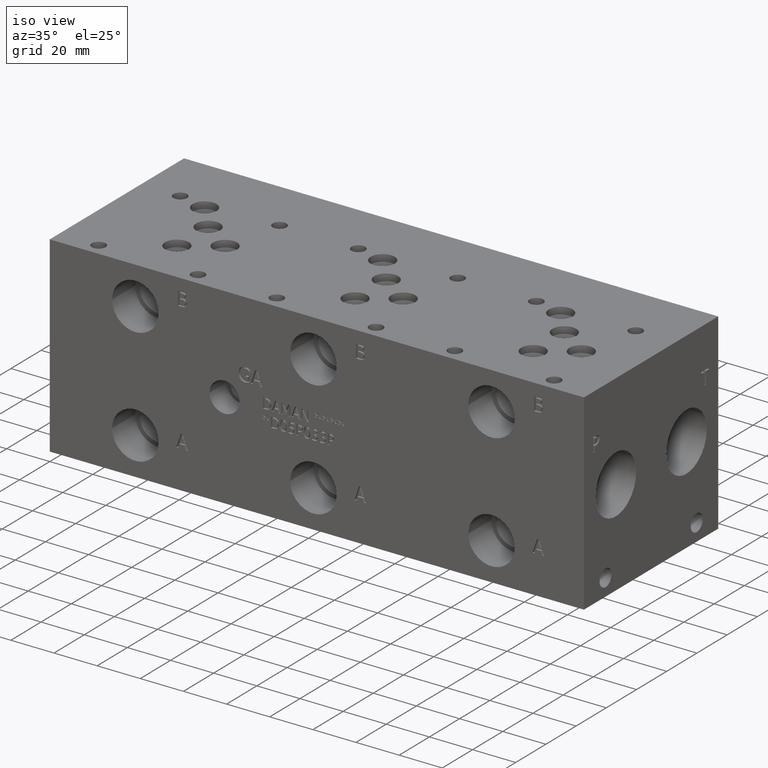
[diagram: clean part render]
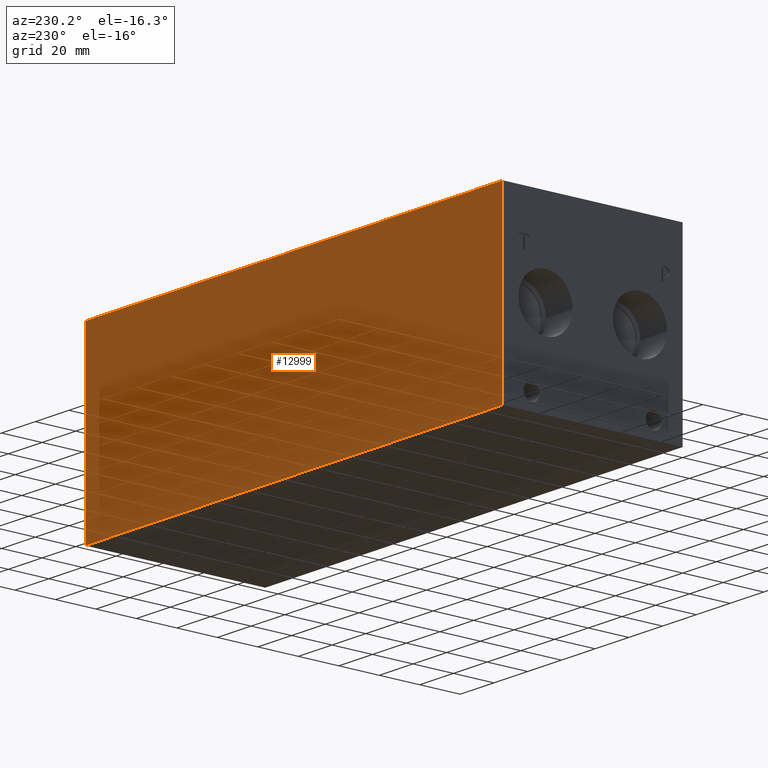
[diagram: tour spotlight — one face highlighted and labeled with its STEP entity id]
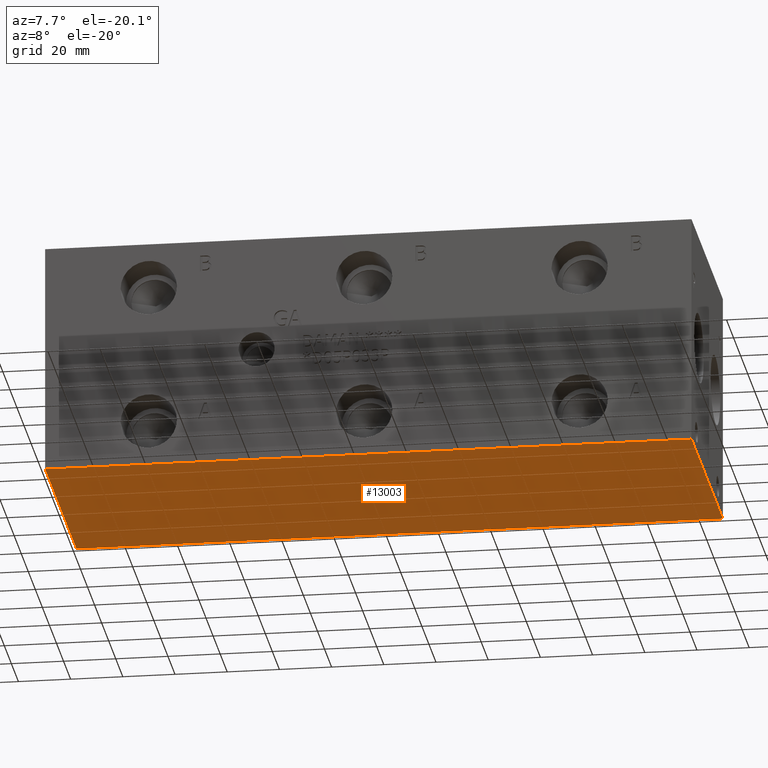
[diagram: tour spotlight — one face highlighted and labeled with its STEP entity id]
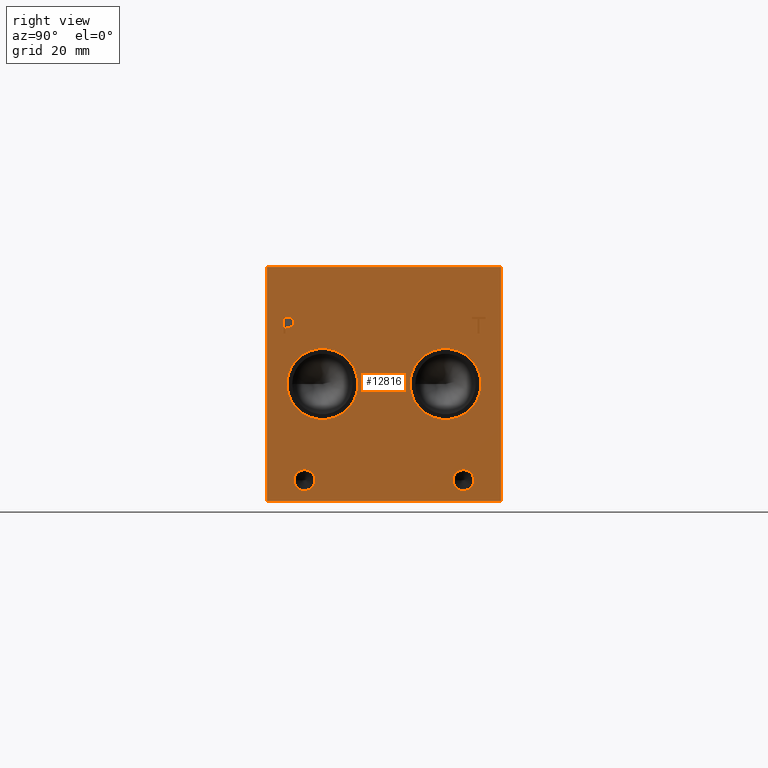
[diagram: tour spotlight — one face highlighted and labeled with its STEP entity id]
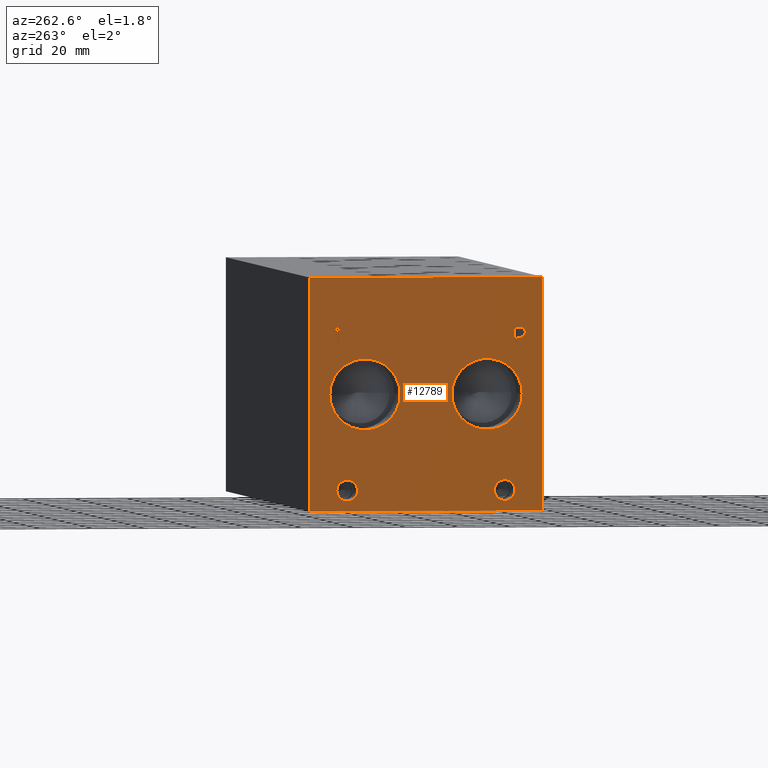
[diagram: tour spotlight — one face highlighted and labeled with its STEP entity id]
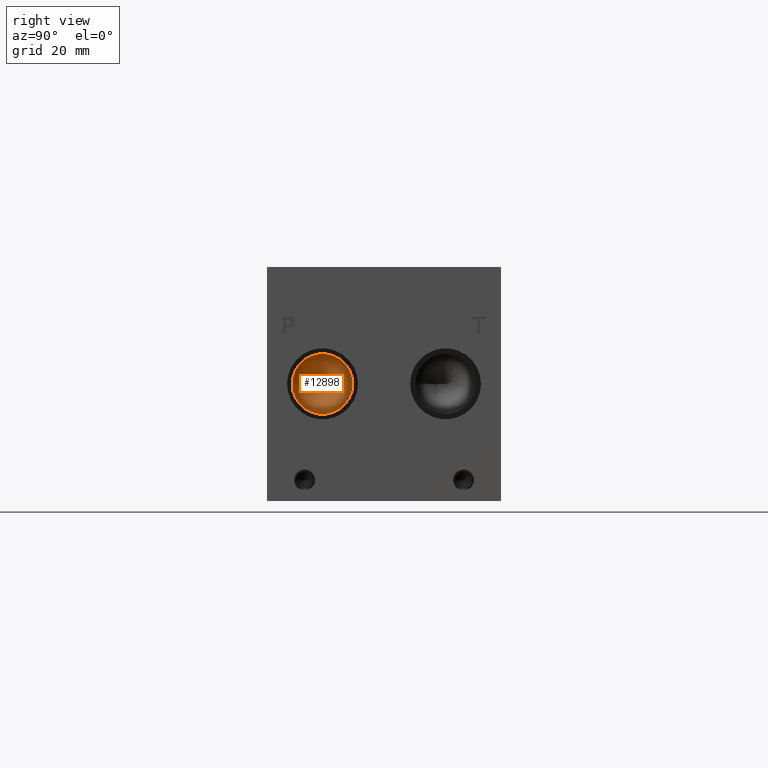
[diagram: tour spotlight — one face highlighted and labeled with its STEP entity id]
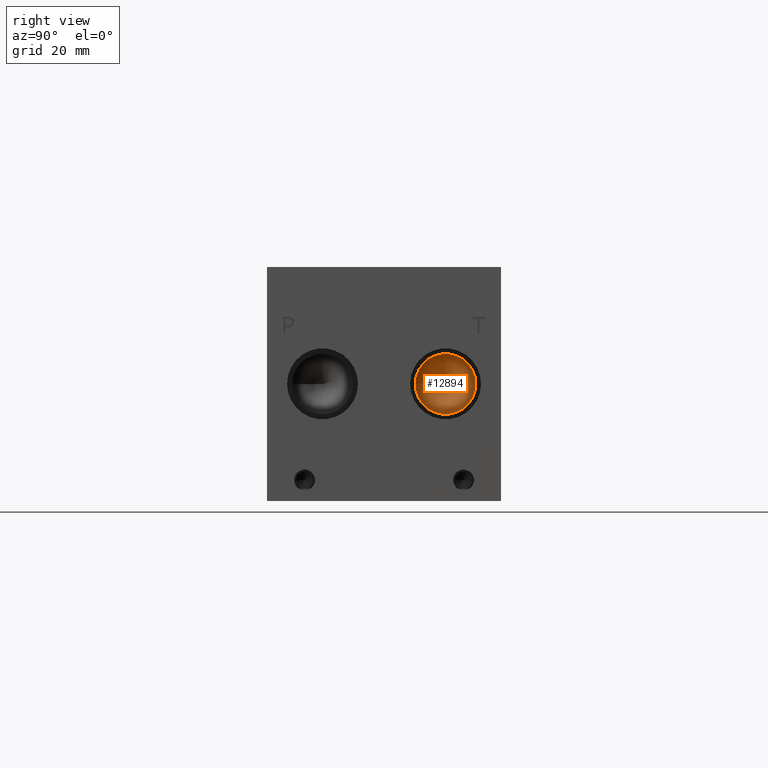
[diagram: tour spotlight — one face highlighted and labeled with its STEP entity id]
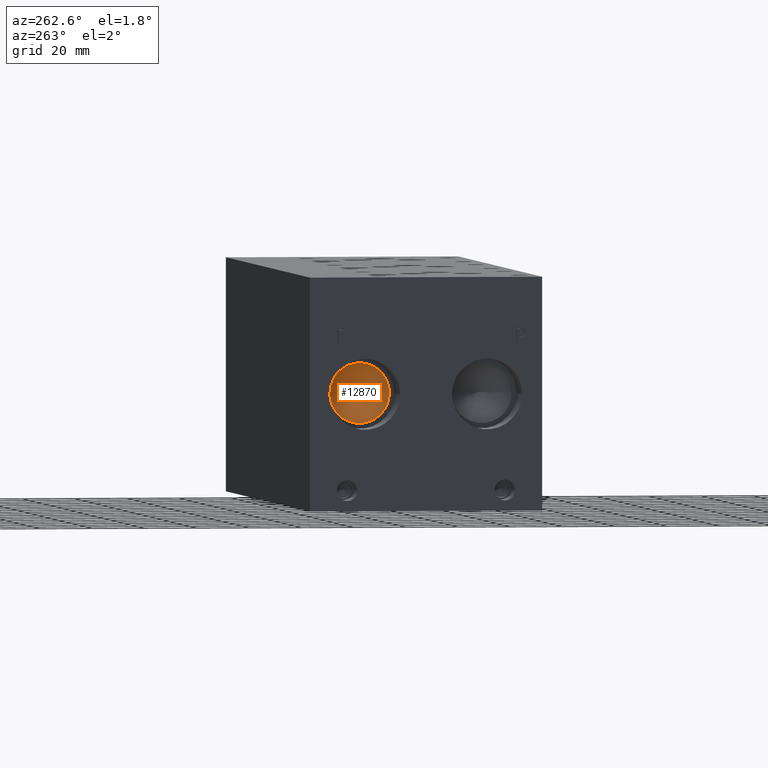
[diagram: tour spotlight — one face highlighted and labeled with its STEP entity id]
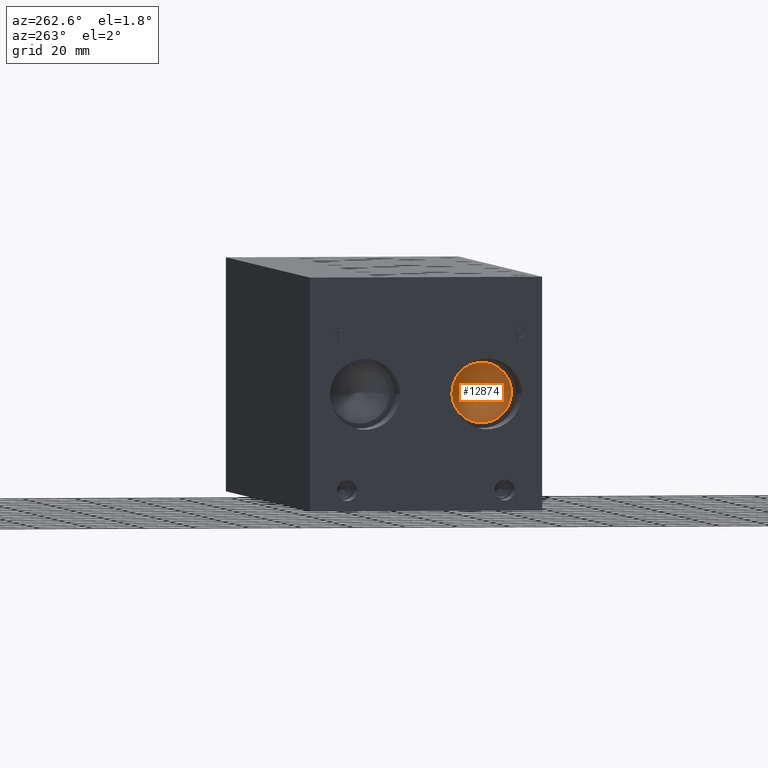
[diagram: tour spotlight — one face highlighted and labeled with its STEP entity id]
A machine part: a face-by-face anatomy tour. The part has 666 B-rep faces; the first image is the clean iso view, then the 8 largest visible faces are spotlighted one at a time (largest first), each with its STEP entity span.

Face 1 — auxiliary view, entity #12999. In plain terms, the highlighted planar face has unit normal (0, 1, 0).
Definition (entity closure, byte-faithful):
#1670=FACE_OUTER_BOUND('',#2428,.T.);
#2428=EDGE_LOOP('',(#11373,#11374,#11375,#11376));
#3394=LINE('',#21028,#4587);
#3452=LINE('',#21299,#4645);
#3648=LINE('',#22401,#4841);
#3649=LINE('',#22402,#4842);
#4587=VECTOR('',#15299,10.);
#4645=VECTOR('',#15411,10.);
#4841=VECTOR('',#16375,10.);
#4842=VECTOR('',#16376,10.);
#5701=VERTEX_POINT('',#21024);
#5702=VERTEX_POINT('',#21026);
#5759=VERTEX_POINT('',#21296);
#5760=VERTEX_POINT('',#21298);
#7354=EDGE_CURVE('',#5701,#5702,#3394,.T.);
#7436=EDGE_CURVE('',#5759,#5760,#3452,.T.);
#7869=EDGE_CURVE('',#5759,#5701,#3648,.T.);
#7870=EDGE_CURVE('',#5760,#5702,#3649,.T.);
#11373=ORIENTED_EDGE('',*,*,#7869,.T.);
#11374=ORIENTED_EDGE('',*,*,#7354,.T.);
#11375=ORIENTED_EDGE('',*,*,#7870,.F.);
#11376=ORIENTED_EDGE('',*,*,#7436,.F.);
#11824=PLANE('',#13737);
#12999=ADVANCED_FACE('',(#1670),#11824,.T.);
#13737=AXIS2_PLACEMENT_3D('',#22400,#16373,#16374);
#15299=DIRECTION('',(0.,0.,1.));
#15411=DIRECTION('',(0.,0.,1.));
#16373=DIRECTION('center_axis',(0.,1.,0.));
#16374=DIRECTION('ref_axis',(-1.,0.,0.));
#16375=DIRECTION('',(-1.,0.,0.));
#16376=DIRECTION('',(-1.,0.,0.));
#21024=CARTESIAN_POINT('',(0.,88.9,0.));
#21026=CARTESIAN_POINT('',(0.,88.9,88.9));
#21028=CARTESIAN_POINT('',(0.,88.9,0.));
#21296=CARTESIAN_POINT('',(247.65,88.9,0.));
#21298=CARTESIAN_POINT('',(247.65,88.9,88.9));
#21299=CARTESIAN_POINT('',(247.65,88.9,0.));
#22400=CARTESIAN_POINT('Origin',(247.65,88.9,0.));
#22401=CARTESIAN_POINT('',(247.65,88.9,0.));
#22402=CARTESIAN_POINT('',(247.65,88.9,88.9));

Face 2 — auxiliary view, entity #13003. In plain terms, the highlighted planar face has unit normal (0, 0, 1).
Definition (entity closure, byte-faithful):
#1674=FACE_OUTER_BOUND('',#2456,.T.);
#2456=EDGE_LOOP('',(#11443,#11444,#11445,#11446));
#2490=LINE('',#16456,#3683);
#3392=LINE('',#21025,#4585);
#3451=LINE('',#21297,#4644);
#3648=LINE('',#22401,#4841);
#3683=VECTOR('',#13803,10.);
#4585=VECTOR('',#15297,10.);
#4644=VECTOR('',#15410,10.);
#4841=VECTOR('',#16375,10.);
#4865=VERTEX_POINT('',#16454);
#4866=VERTEX_POINT('',#16455);
#5701=VERTEX_POINT('',#21024);
#5759=VERTEX_POINT('',#21296);
#6116=EDGE_CURVE('',#4865,#4866,#2490,.T.);
#7352=EDGE_CURVE('',#5701,#4865,#3392,.T.);
#7435=EDGE_CURVE('',#4866,#5759,#3451,.T.);
#7869=EDGE_CURVE('',#5759,#5701,#3648,.T.);
#11443=ORIENTED_EDGE('',*,*,#6116,.F.);
#11444=ORIENTED_EDGE('',*,*,#7352,.F.);
#11445=ORIENTED_EDGE('',*,*,#7869,.F.);
#11446=ORIENTED_EDGE('',*,*,#7435,.F.);
#11828=PLANE('',#13741);
#13003=ADVANCED_FACE('',(#1674),#11828,.F.);
#13741=AXIS2_PLACEMENT_3D('',#22406,#16383,#16384);
#13803=DIRECTION('',(1.,0.,0.));
#15297=DIRECTION('',(0.,-1.,0.));
#15410=DIRECTION('',(0.,1.,0.));
#16375=DIRECTION('',(-1.,0.,0.));
#16383=DIRECTION('center_axis',(0.,0.,1.));
#16384=DIRECTION('ref_axis',(1.,0.,0.));
#16454=CARTESIAN_POINT('',(0.,0.,0.));
#16455=CARTESIAN_POINT('',(247.65,0.,0.));
#16456=CARTESIAN_POINT('',(0.,0.,0.));
#21024=CARTESIAN_POINT('',(0.,88.9,0.));
#21025=CARTESIAN_POINT('',(0.,88.9,0.));
#21296=CARTESIAN_POINT('',(247.65,88.9,0.));
#21297=CARTESIAN_POINT('',(247.65,0.,0.));
#22401=CARTESIAN_POINT('',(247.65,88.9,0.));
#22406=CARTESIAN_POINT('Origin',(123.825,44.45,0.));

Face 3 — right view, entity #12816. In plain terms, the highlighted planar face has unit normal (1, 0, 0).
Definition (entity closure, byte-faithful):
#320=CIRCLE('',#13354,13.462);
#321=CIRCLE('',#13355,13.462);
#322=CIRCLE('',#13356,13.462);
#323=CIRCLE('',#13357,13.462);
#324=CIRCLE('',#13358,3.9624);
#325=CIRCLE('',#13359,3.9624);
#326=CIRCLE('',#13360,3.9624);
#327=CIRCLE('',#13361,3.9624);
#863=B_SPLINE_CURVE_WITH_KNOTS('',2,(#21198,#21199,#21200,#21201),
 .UNSPECIFIED.,.F.,.F.,(3,1,3),(0.,1.,2.),.UNSPECIFIED.);
#865=B_SPLINE_CURVE_WITH_KNOTS('',2,(#21219,#21220,#21221,#21222),
 .UNSPECIFIED.,.F.,.F.,(3,1,3),(0.,1.,2.),.UNSPECIFIED.);
#867=B_SPLINE_CURVE_WITH_KNOTS('',2,(#21268,#21269,#21270,#21271),
 .UNSPECIFIED.,.F.,.F.,(3,1,3),(0.,1.,2.),.UNSPECIFIED.);
#869=B_SPLINE_CURVE_WITH_KNOTS('',2,(#21286,#21287,#21288,#21289),
 .UNSPECIFIED.,.F.,.F.,(3,1,3),(0.,1.,2.),.UNSPECIFIED.);
#949=FACE_BOUND('',#2210,.T.);
#950=FACE_BOUND('',#2211,.T.);
#951=FACE_BOUND('',#2212,.T.);
#952=FACE_BOUND('',#2213,.T.);
#953=FACE_BOUND('',#2214,.T.);
#954=FACE_BOUND('',#2215,.T.);
#1487=FACE_OUTER_BOUND('',#2209,.T.);
#2209=EDGE_LOOP('',(#10503,#10504,#10505,#10506));
#2210=EDGE_LOOP('',(#10507,#10508));
#2211=EDGE_LOOP('',(#10509,#10510));
#2212=EDGE_LOOP('',(#10511,#10512));
#2213=EDGE_LOOP('',(#10513,#10514));
#2214=EDGE_LOOP('',(#10515,#10516,#10517,#10518,#10519,#10520,#10521,#10522));
#2215=EDGE_LOOP('',(#10523,#10524,#10525,#10526,#10527,#10528,#10529,#10530,
#10531));
#2491=LINE('',#16458,#3684);
#3435=LINE('',#21231,#4628);
#3438=LINE('',#21237,#4631);
#3441=LINE('',#21243,#4634);
#3444=LINE('',#21249,#4637);
#3447=LINE('',#21255,#4640);
#3451=LINE('',#21297,#4644);
#3452=LINE('',#21299,#4645);
#3453=LINE('',#21300,#4646);
#3454=LINE('',#21319,#4647);
#3455=LINE('',#21321,#4648);
#3456=LINE('',#21323,#4649);
#3457=LINE('',#21325,#4650);
#3458=LINE('',#21327,#4651);
#3459=LINE('',#21329,#4652);
#3460=LINE('',#21331,#4653);
#3461=LINE('',#21332,#4654);
#3684=VECTOR('',#13804,10.);
#4628=VECTOR('',#15382,10.);
#4631=VECTOR('',#15387,10.);
#4634=VECTOR('',#15392,10.);
#4637=VECTOR('',#15397,10.);
#4640=VECTOR('',#15402,10.);
#4644=VECTOR('',#15410,10.);
#4645=VECTOR('',#15411,10.);
#4646=VECTOR('',#15412,10.);
#4647=VECTOR('',#15429,10.);
#4648=VECTOR('',#15430,10.);
#4649=VECTOR('',#15431,10.);
#4650=VECTOR('',#15432,10.);
#4651=VECTOR('',#15433,10.);
#4652=VECTOR('',#15434,10.);
#4653=VECTOR('',#15435,10.);
#4654=VECTOR('',#15436,10.);
#4866=VERTEX_POINT('',#16455);
#4867=VERTEX_POINT('',#16457);
#5741=VERTEX_POINT('',#21196);
#5742=VERTEX_POINT('',#21197);
#5745=VERTEX_POINT('',#21218);
#5747=VERTEX_POINT('',#21230);
#5749=VERTEX_POINT('',#21236);
#5751=VERTEX_POINT('',#21242);
#5753=VERTEX_POINT('',#21248);
#5755=VERTEX_POINT('',#21254);
#5757=VERTEX_POINT('',#21267);
#5759=VERTEX_POINT('',#21296);
#5760=VERTEX_POINT('',#21298);
#5761=VERTEX_POINT('',#21301);
#5762=VERTEX_POINT('',#21302);
#5763=VERTEX_POINT('',#21305);
#5764=VERTEX_POINT('',#21306);
#5765=VERTEX_POINT('',#21309);
#5766=VERTEX_POINT('',#21310);
#5767=VERTEX_POINT('',#21313);
#5768=VERTEX_POINT('',#21314);
#5769=VERTEX_POINT('',#21317);
#5770=VERTEX_POINT('',#21318);
#5771=VERTEX_POINT('',#21320);
#5772=VERTEX_POINT('',#21322);
#5773=VERTEX_POINT('',#21324);
#5774=VERTEX_POINT('',#21326);
#5775=VERTEX_POINT('',#21328);
#5776=VERTEX_POINT('',#21330);
#6117=EDGE_CURVE('',#4866,#4867,#2491,.T.);
#7408=EDGE_CURVE('',#5741,#5742,#863,.T.);
#7412=EDGE_CURVE('',#5745,#5741,#865,.T.);
#7415=EDGE_CURVE('',#5747,#5745,#3435,.T.);
#7418=EDGE_CURVE('',#5749,#5747,#3438,.T.);
#7421=EDGE_CURVE('',#5751,#5749,#3441,.T.);
#7424=EDGE_CURVE('',#5753,#5751,#3444,.T.);
#7427=EDGE_CURVE('',#5755,#5753,#3447,.T.);
#7430=EDGE_CURVE('',#5757,#5755,#867,.T.);
#7433=EDGE_CURVE('',#5742,#5757,#869,.T.);
#7435=EDGE_CURVE('',#4866,#5759,#3451,.T.);
#7436=EDGE_CURVE('',#5759,#5760,#3452,.T.);
#7437=EDGE_CURVE('',#4867,#5760,#3453,.T.);
#7438=EDGE_CURVE('',#5761,#5762,#320,.T.);
#7439=EDGE_CURVE('',#5762,#5761,#321,.T.);
#7440=EDGE_CURVE('',#5763,#5764,#322,.T.);
#7441=EDGE_CURVE('',#5764,#5763,#323,.T.);
#7442=EDGE_CURVE('',#5765,#5766,#324,.T.);
#7443=EDGE_CURVE('',#5766,#5765,#325,.T.);
#7444=EDGE_CURVE('',#5767,#5768,#326,.T.);
#7445=EDGE_CURVE('',#5768,#5767,#327,.T.);
#7446=EDGE_CURVE('',#5769,#5770,#3454,.T.);
#7447=EDGE_CURVE('',#5770,#5771,#3455,.T.);
#7448=EDGE_CURVE('',#5771,#5772,#3456,.T.);
#7449=EDGE_CURVE('',#5772,#5773,#3457,.T.);
#7450=EDGE_CURVE('',#5773,#5774,#3458,.T.);
#7451=EDGE_CURVE('',#5774,#5775,#3459,.T.);
#7452=EDGE_CURVE('',#5775,#5776,#3460,.T.);
#7453=EDGE_CURVE('',#5776,#5769,#3461,.T.);
#10503=ORIENTED_EDGE('',*,*,#7435,.T.);
#10504=ORIENTED_EDGE('',*,*,#7436,.T.);
#10505=ORIENTED_EDGE('',*,*,#7437,.F.);
#10506=ORIENTED_EDGE('',*,*,#6117,.F.);
#10507=ORIENTED_EDGE('',*,*,#7438,.T.);
#10508=ORIENTED_EDGE('',*,*,#7439,.T.);
#10509=ORIENTED_EDGE('',*,*,#7440,.T.);
#10510=ORIENTED_EDGE('',*,*,#7441,.T.);
#10511=ORIENTED_EDGE('',*,*,#7442,.T.);
#10512=ORIENTED_EDGE('',*,*,#7443,.T.);
#10513=ORIENTED_EDGE('',*,*,#7444,.T.);
#10514=ORIENTED_EDGE('',*,*,#7445,.T.);
#10515=ORIENTED_EDGE('',*,*,#7446,.T.);
#10516=ORIENTED_EDGE('',*,*,#7447,.T.);
#10517=ORIENTED_EDGE('',*,*,#7448,.T.);
#10518=ORIENTED_EDGE('',*,*,#7449,.T.);
#10519=ORIENTED_EDGE('',*,*,#7450,.T.);
#10520=ORIENTED_EDGE('',*,*,#7451,.T.);
#10521=ORIENTED_EDGE('',*,*,#7452,.T.);
#10522=ORIENTED_EDGE('',*,*,#7453,.T.);
#10523=ORIENTED_EDGE('',*,*,#7408,.T.);
#10524=ORIENTED_EDGE('',*,*,#7433,.T.);
#10525=ORIENTED_EDGE('',*,*,#7430,.T.);
#10526=ORIENTED_EDGE('',*,*,#7427,.T.);
#10527=ORIENTED_EDGE('',*,*,#7424,.T.);
#10528=ORIENTED_EDGE('',*,*,#7421,.T.);
#10529=ORIENTED_EDGE('',*,*,#7418,.T.);
#10530=ORIENTED_EDGE('',*,*,#7415,.T.);
#10531=ORIENTED_EDGE('',*,*,#7412,.T.);
#11760=PLANE('',#13353);
#12816=ADVANCED_FACE('',(#1487,#949,#950,#951,#952,#953,#954),#11760,.T.);
#13353=AXIS2_PLACEMENT_3D('',#21295,#15408,#15409);
#13354=AXIS2_PLACEMENT_3D('',#21303,#15413,#15414);
#13355=AXIS2_PLACEMENT_3D('',#21304,#15415,#15416);
#13356=AXIS2_PLACEMENT_3D('',#21307,#15417,#15418);
#13357=AXIS2_PLACEMENT_3D('',#21308,#15419,#15420);
#13358=AXIS2_PLACEMENT_3D('',#21311,#15421,#15422);
#13359=AXIS2_PLACEMENT_3D('',#21312,#15423,#15424);
#13360=AXIS2_PLACEMENT_3D('',#21315,#15425,#15426);
#13361=AXIS2_PLACEMENT_3D('',#21316,#15427,#15428);
#13804=DIRECTION('',(0.,0.,1.));
#15382=DIRECTION('',(0.,1.,0.));
#15387=DIRECTION('',(0.,0.,1.));
#15392=DIRECTION('',(0.,-1.,0.));
#15397=DIRECTION('',(0.,0.,-1.));
#15402=DIRECTION('',(0.,-1.,0.));
#15408=DIRECTION('center_axis',(1.,0.,0.));
#15409=DIRECTION('ref_axis',(0.,1.,0.));
#15410=DIRECTION('',(0.,1.,0.));
#15411=DIRECTION('',(0.,0.,1.));
#15412=DIRECTION('',(0.,1.,0.));
#15413=DIRECTION('center_axis',(-1.,0.,0.));
#15414=DIRECTION('ref_axis',(0.,1.,0.));
#15415=DIRECTION('center_axis',(-1.,0.,0.));
#15416=DIRECTION('ref_axis',(0.,1.,0.));
#15417=DIRECTION('center_axis',(-1.,0.,0.));
#15418=DIRECTION('ref_axis',(0.,1.,0.));
#15419=DIRECTION('center_axis',(-1.,0.,0.));
#15420=DIRECTION('ref_axis',(0.,1.,0.));
#15421=DIRECTION('center_axis',(-1.,0.,0.));
#15422=DIRECTION('ref_axis',(0.,1.,0.));
#15423=DIRECTION('center_axis',(-1.,0.,0.));
#15424=DIRECTION('ref_axis',(0.,1.,0.));
#15425=DIRECTION('center_axis',(-1.,0.,0.));
#15426=DIRECTION('ref_axis',(0.,1.,0.));
#15427=DIRECTION('center_axis',(-1.,0.,0.));
#15428=DIRECTION('ref_axis',(0.,1.,0.));
#15429=DIRECTION('',(0.,-1.,0.));
#15430=DIRECTION('',(0.,0.,1.));
#15431=DIRECTION('',(0.,-1.,0.));
#15432=DIRECTION('',(0.,0.,1.));
#15433=DIRECTION('',(0.,1.,0.));
#15434=DIRECTION('',(0.,0.,-1.));
#15435=DIRECTION('',(0.,-1.,0.));
#15436=DIRECTION('',(0.,0.,-1.));
#16455=CARTESIAN_POINT('',(247.65,0.,0.));
#16457=CARTESIAN_POINT('',(247.65,0.,88.9));
#16458=CARTESIAN_POINT('',(247.65,0.,0.));
#21196=CARTESIAN_POINT('',(247.65,9.45681720235939,69.4537681439707));
#21197=CARTESIAN_POINT('',(247.65,10.213259654532,67.935737372604));
#21198=CARTESIAN_POINT('Ctrl Pts',(247.65,9.45681720235939,69.4537681439707));
#21199=CARTESIAN_POINT('Ctrl Pts',(247.65,9.81188202684857,69.2119123939564));
#21200=CARTESIAN_POINT('Ctrl Pts',(247.65,10.213259654532,68.4657616758269));
#21201=CARTESIAN_POINT('Ctrl Pts',(247.65,10.213259654532,67.935737372604));
#21218=CARTESIAN_POINT('',(247.65,7.7947021543883,69.8499999046326));
#21219=CARTESIAN_POINT('Ctrl Pts',(247.65,7.7947021543883,69.8499999046326));
#21220=CARTESIAN_POINT('Ctrl Pts',(247.65,8.36074752676236,69.8499999046326));
#21221=CARTESIAN_POINT('Ctrl Pts',(247.65,9.15321104808603,69.6647486918556));
#21222=CARTESIAN_POINT('Ctrl Pts',(247.65,9.45681720235939,69.4537681439707));
#21230=CARTESIAN_POINT('',(247.65,6.19948337769779,69.8499999046326));
#21231=CARTESIAN_POINT('',(247.65,3.09974168884889,69.8499999046326));
#21236=CARTESIAN_POINT('',(247.65,6.19948337769779,63.5));
#21237=CARTESIAN_POINT('',(247.65,6.19948337769779,31.75));
#21242=CARTESIAN_POINT('',(247.65,7.04340556923729,63.5));
#21243=CARTESIAN_POINT('',(247.65,3.52170278461864,63.5));
#21248=CARTESIAN_POINT('',(247.65,7.04340556923729,65.8670988299279));
#21249=CARTESIAN_POINT('',(247.65,7.04340556923729,32.9335494149639));
#21254=CARTESIAN_POINT('',(247.65,7.75868108523723,65.8670988299279));
#21255=CARTESIAN_POINT('',(247.65,3.87934054261861,65.8670988299279));
#21267=CARTESIAN_POINT('',(247.65,9.6575060162011,66.5257698086904));
#21268=CARTESIAN_POINT('Ctrl Pts',(247.65,9.6575060162011,66.5257698086904));
#21269=CARTESIAN_POINT('Ctrl Pts',(247.65,9.32817052681983,66.2015801863307));
#21270=CARTESIAN_POINT('Ctrl Pts',(247.65,8.43793553208609,65.8670988299279));
#21271=CARTESIAN_POINT('Ctrl Pts',(247.65,7.75868108523723,65.8670988299279));
#21286=CARTESIAN_POINT('Ctrl Pts',(247.65,10.213259654532,67.935737372604));
#21287=CARTESIAN_POINT('Ctrl Pts',(247.65,10.213259654532,67.5240680108774));
#21288=CARTESIAN_POINT('Ctrl Pts',(247.65,9.9199452343018,66.7830631597695));
#21289=CARTESIAN_POINT('Ctrl Pts',(247.65,9.6575060162011,66.5257698086904));
#21295=CARTESIAN_POINT('Origin',(247.65,0.,0.));
#21296=CARTESIAN_POINT('',(247.65,88.9,0.));
#21297=CARTESIAN_POINT('',(247.65,0.,0.));
#21298=CARTESIAN_POINT('',(247.65,88.9,88.9));
#21299=CARTESIAN_POINT('',(247.65,88.9,0.));
#21300=CARTESIAN_POINT('',(247.65,0.,88.9));
#21301=CARTESIAN_POINT('',(247.65,34.544,44.45));
#21302=CARTESIAN_POINT('',(247.65,7.62,44.45));
#21303=CARTESIAN_POINT('Origin',(247.65,21.082,44.45));
#21304=CARTESIAN_POINT('Origin',(247.65,21.082,44.45));
#21305=CARTESIAN_POINT('',(247.65,81.28,44.45));
#21306=CARTESIAN_POINT('',(247.65,54.356,44.45));
#21307=CARTESIAN_POINT('Origin',(247.65,67.818,44.45));
#21308=CARTESIAN_POINT('Origin',(247.65,67.818,44.45));
#21309=CARTESIAN_POINT('',(247.65,78.5876,7.9248));
#21310=CARTESIAN_POINT('',(247.65,70.6628,7.9248));
#21311=CARTESIAN_POINT('Origin',(247.65,74.6252,7.9248));
#21312=CARTESIAN_POINT('Origin',(247.65,74.6252,7.9248));
#21313=CARTESIAN_POINT('',(247.65,18.2372,7.9248));
#21314=CARTESIAN_POINT('',(247.65,10.3124,7.9248));
#21315=CARTESIAN_POINT('Origin',(247.65,14.2748,7.9248));
#21316=CARTESIAN_POINT('Origin',(247.65,14.2748,7.9248));
#21317=CARTESIAN_POINT('',(247.65,80.756665271453,63.5));
#21318=CARTESIAN_POINT('',(247.65,79.9127430799135,63.5));
#21319=CARTESIAN_POINT('',(247.65,40.3783326357265,63.5));
#21320=CARTESIAN_POINT('',(247.65,79.9127430799135,69.0987033194816));
#21321=CARTESIAN_POINT('',(247.65,79.9127430799135,31.75));
#21322=CARTESIAN_POINT('',(247.65,77.7823541329784,69.0987033194816));
#21323=CARTESIAN_POINT('',(247.65,39.9563715399567,69.0987033194816));
#21324=CARTESIAN_POINT('',(247.65,77.7823541329784,69.8499999046326));
#21325=CARTESIAN_POINT('',(247.65,77.7823541329784,34.5493516597408));
#21326=CARTESIAN_POINT('',(247.65,82.8870542183881,69.8499999046326));
#21327=CARTESIAN_POINT('',(247.65,38.8911770664892,69.8499999046326));
#21328=CARTESIAN_POINT('',(247.65,82.8870542183881,69.0987033194816));
#21329=CARTESIAN_POINT('',(247.65,82.8870542183881,34.9249999523163));
#21330=CARTESIAN_POINT('',(247.65,80.756665271453,69.0987033194816));
#21331=CARTESIAN_POINT('',(247.65,41.443527109194,69.0987033194816));
#21332=CARTESIAN_POINT('',(247.65,80.756665271453,34.5493516597408));

Face 4 — auxiliary view, entity #12789. In plain terms, the highlighted planar face has unit normal (-1, 0, 0).
Definition (entity closure, byte-faithful):
#312=CIRCLE('',#13327,3.9624);
#313=CIRCLE('',#13328,3.9624);
#314=CIRCLE('',#13329,3.9624);
#315=CIRCLE('',#13330,3.9624);
#316=CIRCLE('',#13331,13.462);
#317=CIRCLE('',#13332,13.462);
#318=CIRCLE('',#13333,13.462);
#319=CIRCLE('',#13334,13.462);
#847=B_SPLINE_CURVE_WITH_KNOTS('',2,(#20926,#20927,#20928,#20929),
 .UNSPECIFIED.,.F.,.F.,(3,1,3),(0.,1.,2.),.UNSPECIFIED.);
#849=B_SPLINE_CURVE_WITH_KNOTS('',2,(#20947,#20948,#20949,#20950),
 .UNSPECIFIED.,.F.,.F.,(3,1,3),(0.,1.,2.),.UNSPECIFIED.);
#851=B_SPLINE_CURVE_WITH_KNOTS('',2,(#20996,#20997,#20998,#20999),
 .UNSPECIFIED.,.F.,.F.,(3,1,3),(0.,1.,2.),.UNSPECIFIED.);
#853=B_SPLINE_CURVE_WITH_KNOTS('',2,(#21014,#21015,#21016,#21017),
 .UNSPECIFIED.,.F.,.F.,(3,1,3),(0.,1.,2.),.UNSPECIFIED.);
#942=FACE_BOUND('',#2176,.T.);
#943=FACE_BOUND('',#2177,.T.);
#944=FACE_BOUND('',#2178,.T.);
#945=FACE_BOUND('',#2179,.T.);
#946=FACE_BOUND('',#2180,.T.);
#947=FACE_BOUND('',#2181,.T.);
#1460=FACE_OUTER_BOUND('',#2175,.T.);
#2175=EDGE_LOOP('',(#10354,#10355,#10356,#10357));
#2176=EDGE_LOOP('',(#10358,#10359));
#2177=EDGE_LOOP('',(#10360,#10361));
#2178=EDGE_LOOP('',(#10362,#10363));
#2179=EDGE_LOOP('',(#10364,#10365));
#2180=EDGE_LOOP('',(#10366,#10367,#10368,#10369,#10370,#10371,#10372,#10373));
#2181=EDGE_LOOP('',(#10374,#10375,#10376,#10377,#10378,#10379,#10380,#10381,
#10382));
#2493=LINE('',#16461,#3686);
#3376=LINE('',#20959,#4569);
#3379=LINE('',#20965,#4572);
#3382=LINE('',#20971,#4575);
#3385=LINE('',#20977,#4578);
#3388=LINE('',#20983,#4581);
#3392=LINE('',#21025,#4585);
#3393=LINE('',#21027,#4586);
#3394=LINE('',#21028,#4587);
#3395=LINE('',#21047,#4588);
#3396=LINE('',#21049,#4589);
#3397=LINE('',#21051,#4590);
#3398=LINE('',#21053,#4591);
#3399=LINE('',#21055,#4592);
#3400=LINE('',#21057,#4593);
#3401=LINE('',#21059,#4594);
#3402=LINE('',#21060,#4595);
#3686=VECTOR('',#13806,10.);
#4569=VECTOR('',#15269,10.);
#4572=VECTOR('',#15274,10.);
#4575=VECTOR('',#15279,10.);
#4578=VECTOR('',#15284,10.);
#4581=VECTOR('',#15289,10.);
#4585=VECTOR('',#15297,10.);
#4586=VECTOR('',#15298,10.);
#4587=VECTOR('',#15299,10.);
#4588=VECTOR('',#15316,10.);
#4589=VECTOR('',#15317,10.);
#4590=VECTOR('',#15318,10.);
#4591=VECTOR('',#15319,10.);
#4592=VECTOR('',#15320,10.);
#4593=VECTOR('',#15321,10.);
#4594=VECTOR('',#15322,10.);
#4595=VECTOR('',#15323,10.);
#4865=VERTEX_POINT('',#16454);
#4868=VERTEX_POINT('',#16459);
#5683=VERTEX_POINT('',#20924);
#5684=VERTEX_POINT('',#20925);
#5687=VERTEX_POINT('',#20946);
#5689=VERTEX_POINT('',#20958);
#5691=VERTEX_POINT('',#20964);
#5693=VERTEX_POINT('',#20970);
#5695=VERTEX_POINT('',#20976);
#5697=VERTEX_POINT('',#20982);
#5699=VERTEX_POINT('',#20995);
#5701=VERTEX_POINT('',#21024);
#5702=VERTEX_POINT('',#21026);
#5703=VERTEX_POINT('',#21029);
#5704=VERTEX_POINT('',#21030);
#5705=VERTEX_POINT('',#21033);
#5706=VERTEX_POINT('',#21034);
#5707=VERTEX_POINT('',#21037);
#5708=VERTEX_POINT('',#21038);
#5709=VERTEX_POINT('',#21041);
#5710=VERTEX_POINT('',#21042);
#5711=VERTEX_POINT('',#21045);
#5712=VERTEX_POINT('',#21046);
#5713=VERTEX_POINT('',#21048);
#5714=VERTEX_POINT('',#21050);
#5715=VERTEX_POINT('',#21052);
#5716=VERTEX_POINT('',#21054);
#5717=VERTEX_POINT('',#21056);
#5718=VERTEX_POINT('',#21058);
#6119=EDGE_CURVE('',#4865,#4868,#2493,.T.);
#7325=EDGE_CURVE('',#5683,#5684,#847,.T.);
#7329=EDGE_CURVE('',#5687,#5683,#849,.T.);
#7332=EDGE_CURVE('',#5689,#5687,#3376,.T.);
#7335=EDGE_CURVE('',#5691,#5689,#3379,.T.);
#7338=EDGE_CURVE('',#5693,#5691,#3382,.T.);
#7341=EDGE_CURVE('',#5695,#5693,#3385,.T.);
#7344=EDGE_CURVE('',#5697,#5695,#3388,.T.);
#7347=EDGE_CURVE('',#5699,#5697,#851,.T.);
#7350=EDGE_CURVE('',#5684,#5699,#853,.T.);
#7352=EDGE_CURVE('',#5701,#4865,#3392,.T.);
#7353=EDGE_CURVE('',#5702,#4868,#3393,.T.);
#7354=EDGE_CURVE('',#5701,#5702,#3394,.T.);
#7355=EDGE_CURVE('',#5703,#5704,#312,.T.);
#7356=EDGE_CURVE('',#5704,#5703,#313,.T.);
#7357=EDGE_CURVE('',#5705,#5706,#314,.T.);
#7358=EDGE_CURVE('',#5706,#5705,#315,.T.);
#7359=EDGE_CURVE('',#5707,#5708,#316,.T.);
#7360=EDGE_CURVE('',#5708,#5707,#317,.T.);
#7361=EDGE_CURVE('',#5709,#5710,#318,.T.);
#7362=EDGE_CURVE('',#5710,#5709,#319,.T.);
#7363=EDGE_CURVE('',#5711,#5712,#3395,.T.);
#7364=EDGE_CURVE('',#5712,#5713,#3396,.T.);
#7365=EDGE_CURVE('',#5713,#5714,#3397,.T.);
#7366=EDGE_CURVE('',#5714,#5715,#3398,.T.);
#7367=EDGE_CURVE('',#5715,#5716,#3399,.T.);
#7368=EDGE_CURVE('',#5716,#5717,#3400,.T.);
#7369=EDGE_CURVE('',#5717,#5718,#3401,.T.);
#7370=EDGE_CURVE('',#5718,#5711,#3402,.T.);
#10354=ORIENTED_EDGE('',*,*,#7352,.T.);
#10355=ORIENTED_EDGE('',*,*,#6119,.T.);
#10356=ORIENTED_EDGE('',*,*,#7353,.F.);
#10357=ORIENTED_EDGE('',*,*,#7354,.F.);
#10358=ORIENTED_EDGE('',*,*,#7355,.T.);
#10359=ORIENTED_EDGE('',*,*,#7356,.T.);
#10360=ORIENTED_EDGE('',*,*,#7357,.T.);
#10361=ORIENTED_EDGE('',*,*,#7358,.T.);
#10362=ORIENTED_EDGE('',*,*,#7359,.T.);
#10363=ORIENTED_EDGE('',*,*,#7360,.T.);
#10364=ORIENTED_EDGE('',*,*,#7361,.T.);
#10365=ORIENTED_EDGE('',*,*,#7362,.T.);
#10366=ORIENTED_EDGE('',*,*,#7363,.T.);
#10367=ORIENTED_EDGE('',*,*,#7364,.T.);
#10368=ORIENTED_EDGE('',*,*,#7365,.T.);
#10369=ORIENTED_EDGE('',*,*,#7366,.T.);
#10370=ORIENTED_EDGE('',*,*,#7367,.T.);
#10371=ORIENTED_EDGE('',*,*,#7368,.T.);
#10372=ORIENTED_EDGE('',*,*,#7369,.T.);
#10373=ORIENTED_EDGE('',*,*,#7370,.T.);
#10374=ORIENTED_EDGE('',*,*,#7325,.T.);
#10375=ORIENTED_EDGE('',*,*,#7350,.T.);
#10376=ORIENTED_EDGE('',*,*,#7347,.T.);
#10377=ORIENTED_EDGE('',*,*,#7344,.T.);
#10378=ORIENTED_EDGE('',*,*,#7341,.T.);
#10379=ORIENTED_EDGE('',*,*,#7338,.T.);
#10380=ORIENTED_EDGE('',*,*,#7335,.T.);
#10381=ORIENTED_EDGE('',*,*,#7332,.T.);
#10382=ORIENTED_EDGE('',*,*,#7329,.T.);
#11741=PLANE('',#13326);
#12789=ADVANCED_FACE('',(#1460,#942,#943,#944,#945,#946,#947),#11741,.T.);
#13326=AXIS2_PLACEMENT_3D('',#21023,#15295,#15296);
#13327=AXIS2_PLACEMENT_3D('',#21031,#15300,#15301);
#13328=AXIS2_PLACEMENT_3D('',#21032,#15302,#15303);
#13329=AXIS2_PLACEMENT_3D('',#21035,#15304,#15305);
#13330=AXIS2_PLACEMENT_3D('',#21036,#15306,#15307);
#13331=AXIS2_PLACEMENT_3D('',#21039,#15308,#15309);
#13332=AXIS2_PLACEMENT_3D('',#21040,#15310,#15311);
#13333=AXIS2_PLACEMENT_3D('',#21043,#15312,#15313);
#13334=AXIS2_PLACEMENT_3D('',#21044,#15314,#15315);
#13806=DIRECTION('',(0.,0.,1.));
#15269=DIRECTION('',(0.,-1.,-5.56775304226775E-15));
#15274=DIRECTION('',(0.,-3.14708893596576E-15,1.));
#15279=DIRECTION('',(0.,1.,0.));
#15284=DIRECTION('',(0.,2.81413604853751E-15,-1.));
#15289=DIRECTION('',(0.,1.,0.));
#15295=DIRECTION('center_axis',(-1.,0.,0.));
#15296=DIRECTION('ref_axis',(0.,-1.,0.));
#15297=DIRECTION('',(0.,-1.,0.));
#15298=DIRECTION('',(0.,-1.,0.));
#15299=DIRECTION('',(0.,0.,1.));
#15300=DIRECTION('center_axis',(1.,0.,0.));
#15301=DIRECTION('ref_axis',(0.,1.,0.));
#15302=DIRECTION('center_axis',(1.,0.,0.));
#15303=DIRECTION('ref_axis',(0.,1.,0.));
#15304=DIRECTION('center_axis',(1.,0.,0.));
#15305=DIRECTION('ref_axis',(0.,1.,0.));
#15306=DIRECTION('center_axis',(1.,0.,0.));
#15307=DIRECTION('ref_axis',(0.,1.,0.));
#15308=DIRECTION('center_axis',(1.,0.,0.));
#15309=DIRECTION('ref_axis',(0.,1.,0.));
#15310=DIRECTION('center_axis',(1.,0.,0.));
#15311=DIRECTION('ref_axis',(0.,1.,0.));
#15312=DIRECTION('center_axis',(1.,0.,0.));
#15313=DIRECTION('ref_axis',(0.,1.,0.));
#15314=DIRECTION('center_axis',(1.,0.,0.));
#15315=DIRECTION('ref_axis',(0.,1.,0.));
#15316=DIRECTION('',(0.,1.,0.));
#15317=DIRECTION('',(0.,-3.17280044688052E-15,1.));
#15318=DIRECTION('',(0.,1.,4.16909044227778E-15));
#15319=DIRECTION('',(0.,0.,1.));
#15320=DIRECTION('',(0.,-1.,-3.47984565141734E-15));
#15321=DIRECTION('',(0.,0.,-1.));
#15322=DIRECTION('',(0.,1.,0.));
#15323=DIRECTION('',(0.,3.17280044688052E-15,-1.));
#16454=CARTESIAN_POINT('',(0.,0.,0.));
#16459=CARTESIAN_POINT('',(0.,0.,88.9));
#16461=CARTESIAN_POINT('',(0.,0.,0.));
#20924=CARTESIAN_POINT('',(0.,7.21193279764059,69.4537681439707));
#20925=CARTESIAN_POINT('',(0.,6.455490345468,67.9357373726039));
#20926=CARTESIAN_POINT('Ctrl Pts',(0.,7.21193279764059,69.4537681439707));
#20927=CARTESIAN_POINT('Ctrl Pts',(0.,6.85686797315142,69.2119123939563));
#20928=CARTESIAN_POINT('Ctrl Pts',(0.,6.455490345468,68.4657616758269));
#20929=CARTESIAN_POINT('Ctrl Pts',(0.,6.455490345468,67.9357373726039));
#20946=CARTESIAN_POINT('',(0.,8.87404784561168,69.8499999046326));
#20947=CARTESIAN_POINT('Ctrl Pts',(0.,8.87404784561168,69.8499999046326));
#20948=CARTESIAN_POINT('Ctrl Pts',(0.,8.30800247323763,69.8499999046326));
#20949=CARTESIAN_POINT('Ctrl Pts',(0.,7.51553895191395,69.6647486918556));
#20950=CARTESIAN_POINT('Ctrl Pts',(0.,7.21193279764059,69.4537681439707));
#20958=CARTESIAN_POINT('',(0.,10.4692666223022,69.8499999046326));
#20959=CARTESIAN_POINT('',(0.,49.6846333111509,69.8499999046328));
#20964=CARTESIAN_POINT('',(0.,10.4692666223022,63.5));
#20965=CARTESIAN_POINT('',(0.,10.4692666223023,31.7499999999999));
#20970=CARTESIAN_POINT('',(0.,9.62534443076272,63.5));
#20971=CARTESIAN_POINT('',(0.,49.2626722153814,63.5));
#20976=CARTESIAN_POINT('',(0.,9.62534443076271,65.8670988299279));
#20977=CARTESIAN_POINT('',(0.,9.6253444307628,32.9335494149638));
#20982=CARTESIAN_POINT('',(0.,8.91006891476277,65.8670988299279));
#20983=CARTESIAN_POINT('',(0.,48.9050344573814,65.8670988299279));
#20995=CARTESIAN_POINT('',(0.,7.01124398379889,66.5257698086904));
#20996=CARTESIAN_POINT('Ctrl Pts',(0.,7.01124398379889,66.5257698086904));
#20997=CARTESIAN_POINT('Ctrl Pts',(0.,7.34057947318016,66.2015801863307));
#20998=CARTESIAN_POINT('Ctrl Pts',(0.,8.2308144679139,65.8670988299279));
#20999=CARTESIAN_POINT('Ctrl Pts',(0.,8.91006891476277,65.8670988299279));
#21014=CARTESIAN_POINT('Ctrl Pts',(0.,6.455490345468,67.9357373726039));
#21015=CARTESIAN_POINT('Ctrl Pts',(0.,6.455490345468,67.5240680108774));
#21016=CARTESIAN_POINT('Ctrl Pts',(0.,6.7488047656982,66.7830631597695));
#21017=CARTESIAN_POINT('Ctrl Pts',(0.,7.01124398379889,66.5257698086904));
#21023=CARTESIAN_POINT('Origin',(0.,88.9,0.));
#21024=CARTESIAN_POINT('',(0.,88.9,0.));
#21025=CARTESIAN_POINT('',(0.,88.9,0.));
#21026=CARTESIAN_POINT('',(0.,88.9,88.9));
#21027=CARTESIAN_POINT('',(0.,88.9,88.9));
#21028=CARTESIAN_POINT('',(0.,88.9,0.));
#21029=CARTESIAN_POINT('',(0.,78.5876,7.92479999999999));
#21030=CARTESIAN_POINT('',(0.,70.6628,7.92479999999999));
#21031=CARTESIAN_POINT('Origin',(0.,74.6252,7.92479999999999));
#21032=CARTESIAN_POINT('Origin',(0.,74.6252,7.92479999999999));
#21033=CARTESIAN_POINT('',(0.,18.2372,7.92479999999999));
#21034=CARTESIAN_POINT('',(0.,10.3124,7.92479999999999));
#21035=CARTESIAN_POINT('Origin',(0.,14.2748,7.92479999999999));
#21036=CARTESIAN_POINT('Origin',(0.,14.2748,7.92479999999999));
#21037=CARTESIAN_POINT('',(0.,34.544,44.45));
#21038=CARTESIAN_POINT('',(1.11022302462516E-15,7.62,44.45));
#21039=CARTESIAN_POINT('Origin',(0.,21.082,44.45));
#21040=CARTESIAN_POINT('Origin',(0.,21.082,44.45));
#21041=CARTESIAN_POINT('',(0.,81.28,44.45));
#21042=CARTESIAN_POINT('',(1.11022302462516E-15,54.356,44.45));
#21043=CARTESIAN_POINT('Origin',(0.,67.818,44.45));
#21044=CARTESIAN_POINT('Origin',(0.,67.818,44.45));
#21045=CARTESIAN_POINT('',(0.,77.993334728547,63.5));
#21046=CARTESIAN_POINT('',(0.,78.8372569200865,63.5));
#21047=CARTESIAN_POINT('',(0.,83.4466673642735,63.5));
#21048=CARTESIAN_POINT('',(0.,78.8372569200865,69.0987033194815));
#21049=CARTESIAN_POINT('',(0.,78.8372569200866,31.75));
#21050=CARTESIAN_POINT('',(0.,80.9676458670216,69.0987033194815));
#21051=CARTESIAN_POINT('',(0.,83.8686284600431,69.0987033194816));
#21052=CARTESIAN_POINT('',(0.,80.9676458670216,69.8499999046325));
#21053=CARTESIAN_POINT('',(0.,80.9676458670216,34.5493516597408));
#21054=CARTESIAN_POINT('',(0.,75.8629457816119,69.8499999046325));
#21055=CARTESIAN_POINT('',(0.,84.9338229335107,69.8499999046326));
#21056=CARTESIAN_POINT('',(0.,75.8629457816119,69.0987033194815));
#21057=CARTESIAN_POINT('',(0.,75.8629457816119,34.9249999523163));
#21058=CARTESIAN_POINT('',(0.,77.993334728547,69.0987033194815));
#21059=CARTESIAN_POINT('',(0.,82.381472890806,69.0987033194815));
#21060=CARTESIAN_POINT('',(0.,77.9933347285471,34.5493516597407));

Face 5 — right view, entity #12898. In plain terms, the highlighted conical surface has half-angle 60 deg.
Definition (entity closure, byte-faithful):
#88=CONICAL_SURFACE('',#13469,5.7531,1.0471975511966);
#368=CIRCLE('',#13470,11.5062);
#369=CIRCLE('',#13471,11.5062);
#1569=FACE_OUTER_BOUND('',#2308,.T.);
#2308=EDGE_LOOP('',(#10904,#10905,#10906,#10907));
#3567=LINE('',#21858,#4760);
#4760=VECTOR('',#15760,5.7531);
#5885=VERTEX_POINT('',#21854);
#5886=VERTEX_POINT('',#21855);
#5887=VERTEX_POINT('',#21857);
#7621=EDGE_CURVE('',#5885,#5886,#368,.T.);
#7622=EDGE_CURVE('',#5886,#5887,#3567,.T.);
#7623=EDGE_CURVE('',#5886,#5885,#369,.T.);
#10904=ORIENTED_EDGE('',*,*,#7621,.T.);
#10905=ORIENTED_EDGE('',*,*,#7622,.T.);
#10906=ORIENTED_EDGE('',*,*,#7622,.F.);
#10907=ORIENTED_EDGE('',*,*,#7623,.T.);
#12898=ADVANCED_FACE('',(#1569),#88,.F.);
#13469=AXIS2_PLACEMENT_3D('',#21853,#15756,#15757);
#13470=AXIS2_PLACEMENT_3D('',#21856,#15758,#15759);
#13471=AXIS2_PLACEMENT_3D('',#21859,#15761,#15762);
#15756=DIRECTION('center_axis',(1.,0.,0.));
#15757=DIRECTION('ref_axis',(0.,1.,0.));
#15758=DIRECTION('center_axis',(1.,0.,0.));
#15759=DIRECTION('ref_axis',(0.,1.,0.));
#15760=DIRECTION('',(-0.5,0.866025403784439,1.06057523872491E-16));
#15761=DIRECTION('center_axis',(1.,0.,0.));
#15762=DIRECTION('ref_axis',(0.,1.,0.));
#21853=CARTESIAN_POINT('Origin',(227.814536166325,21.082,44.45));
#21854=CARTESIAN_POINT('',(231.13609,32.5882,44.45));
#21855=CARTESIAN_POINT('',(231.13609,9.57580000000001,44.45));
#21856=CARTESIAN_POINT('Origin',(231.13609,21.082,44.45));
#21857=CARTESIAN_POINT('',(224.49298233265,21.082,44.45));
#21858=CARTESIAN_POINT('',(227.814536166325,15.3289,44.45));
#21859=CARTESIAN_POINT('Origin',(231.13609,21.082,44.45));

Face 6 — right view, entity #12894. In plain terms, the highlighted conical surface has half-angle 60 deg.
Definition (entity closure, byte-faithful):
#87=CONICAL_SURFACE('',#13460,5.7531,1.0471975511966);
#363=CIRCLE('',#13461,11.5062);
#364=CIRCLE('',#13462,11.5062);
#1565=FACE_OUTER_BOUND('',#2303,.T.);
#2303=EDGE_LOOP('',(#10886,#10887,#10888,#10889));
#3564=LINE('',#21840,#4757);
#4757=VECTOR('',#15739,5.7531);
#5879=VERTEX_POINT('',#21836);
#5880=VERTEX_POINT('',#21837);
#5881=VERTEX_POINT('',#21839);
#7613=EDGE_CURVE('',#5879,#5880,#363,.T.);
#7614=EDGE_CURVE('',#5880,#5881,#3564,.T.);
#7615=EDGE_CURVE('',#5880,#5879,#364,.T.);
#10886=ORIENTED_EDGE('',*,*,#7613,.T.);
#10887=ORIENTED_EDGE('',*,*,#7614,.T.);
#10888=ORIENTED_EDGE('',*,*,#7614,.F.);
#10889=ORIENTED_EDGE('',*,*,#7615,.T.);
#12894=ADVANCED_FACE('',(#1565),#87,.F.);
#13460=AXIS2_PLACEMENT_3D('',#21835,#15735,#15736);
#13461=AXIS2_PLACEMENT_3D('',#21838,#15737,#15738);
#13462=AXIS2_PLACEMENT_3D('',#21841,#15740,#15741);
#15735=DIRECTION('center_axis',(1.,0.,0.));
#15736=DIRECTION('ref_axis',(0.,1.,0.));
#15737=DIRECTION('center_axis',(1.,0.,0.));
#15738=DIRECTION('ref_axis',(0.,1.,0.));
#15739=DIRECTION('',(-0.5,0.866025403784439,1.06057523872491E-16));
#15740=DIRECTION('center_axis',(1.,0.,0.));
#15741=DIRECTION('ref_axis',(0.,1.,0.));
#21835=CARTESIAN_POINT('Origin',(227.814536166325,67.818,44.45));
#21836=CARTESIAN_POINT('',(231.13609,79.3242,44.45));
#21837=CARTESIAN_POINT('',(231.13609,56.3118,44.45));
#21838=CARTESIAN_POINT('Origin',(231.13609,67.818,44.45));
#21839=CARTESIAN_POINT('',(224.49298233265,67.818,44.45));
#21840=CARTESIAN_POINT('',(227.814536166325,62.0649,44.45));
#21841=CARTESIAN_POINT('Origin',(231.13609,67.818,44.45));

Face 7 — auxiliary view, entity #12870. In plain terms, the highlighted conical surface has half-angle 60 deg.
Definition (entity closure, byte-faithful):
#81=CONICAL_SURFACE('',#13406,5.7531,1.0471975511966);
#333=CIRCLE('',#13407,11.5062);
#334=CIRCLE('',#13408,11.5062);
#1541=FACE_OUTER_BOUND('',#2273,.T.);
#2273=EDGE_LOOP('',(#10778,#10779,#10780,#10781));
#3546=LINE('',#21732,#4739);
#4739=VECTOR('',#15613,5.7531);
#5843=VERTEX_POINT('',#21728);
#5844=VERTEX_POINT('',#21729);
#5845=VERTEX_POINT('',#21731);
#7565=EDGE_CURVE('',#5843,#5844,#333,.T.);
#7566=EDGE_CURVE('',#5844,#5845,#3546,.T.);
#7567=EDGE_CURVE('',#5844,#5843,#334,.T.);
#10778=ORIENTED_EDGE('',*,*,#7565,.T.);
#10779=ORIENTED_EDGE('',*,*,#7566,.T.);
#10780=ORIENTED_EDGE('',*,*,#7566,.F.);
#10781=ORIENTED_EDGE('',*,*,#7567,.T.);
#12870=ADVANCED_FACE('',(#1541),#81,.F.);
#13406=AXIS2_PLACEMENT_3D('',#21727,#15609,#15610);
#13407=AXIS2_PLACEMENT_3D('',#21730,#15611,#15612);
#13408=AXIS2_PLACEMENT_3D('',#21733,#15614,#15615);
#15609=DIRECTION('center_axis',(-1.,0.,0.));
#15610=DIRECTION('ref_axis',(0.,1.,0.));
#15611=DIRECTION('center_axis',(-1.,0.,0.));
#15612=DIRECTION('ref_axis',(0.,1.,0.));
#15613=DIRECTION('',(0.5,0.866025403784439,-1.06057523872491E-16));
#15614=DIRECTION('center_axis',(-1.,0.,0.));
#15615=DIRECTION('ref_axis',(0.,1.,0.));
#21727=CARTESIAN_POINT('Origin',(19.8354638336748,67.818,44.45));
#21728=CARTESIAN_POINT('',(16.51391,79.3242,44.45));
#21729=CARTESIAN_POINT('',(16.51391,56.3118,44.45));
#21730=CARTESIAN_POINT('Origin',(16.51391,67.818,44.45));
#21731=CARTESIAN_POINT('',(23.1570176673497,67.818,44.45));
#21732=CARTESIAN_POINT('',(19.8354638336748,62.0649,44.45));
#21733=CARTESIAN_POINT('Origin',(16.51391,67.818,44.45));

Face 8 — auxiliary view, entity #12874. In plain terms, the highlighted conical surface has half-angle 60 deg.
Definition (entity closure, byte-faithful):
#82=CONICAL_SURFACE('',#13415,5.7531,1.0471975511966);
#338=CIRCLE('',#13416,11.5062);
#339=CIRCLE('',#13417,11.5062);
#1545=FACE_OUTER_BOUND('',#2278,.T.);
#2278=EDGE_LOOP('',(#10796,#10797,#10798,#10799));
#3549=LINE('',#21750,#4742);
#4742=VECTOR('',#15634,5.7531);
#5849=VERTEX_POINT('',#21746);
#5850=VERTEX_POINT('',#21747);
#5851=VERTEX_POINT('',#21749);
#7573=EDGE_CURVE('',#5849,#5850,#338,.T.);
#7574=EDGE_CURVE('',#5850,#5851,#3549,.T.);
#7575=EDGE_CURVE('',#5850,#5849,#339,.T.);
#10796=ORIENTED_EDGE('',*,*,#7573,.T.);
#10797=ORIENTED_EDGE('',*,*,#7574,.T.);
#10798=ORIENTED_EDGE('',*,*,#7574,.F.);
#10799=ORIENTED_EDGE('',*,*,#7575,.T.);
#12874=ADVANCED_FACE('',(#1545),#82,.F.);
#13415=AXIS2_PLACEMENT_3D('',#21745,#15630,#15631);
#13416=AXIS2_PLACEMENT_3D('',#21748,#15632,#15633);
#13417=AXIS2_PLACEMENT_3D('',#21751,#15635,#15636);
#15630=DIRECTION('center_axis',(-1.,0.,0.));
#15631=DIRECTION('ref_axis',(0.,1.,0.));
#15632=DIRECTION('center_axis',(-1.,0.,0.));
#15633=DIRECTION('ref_axis',(0.,1.,0.));
#15634=DIRECTION('',(0.5,0.866025403784439,-1.06057523872491E-16));
#15635=DIRECTION('center_axis',(-1.,0.,0.));
#15636=DIRECTION('ref_axis',(0.,1.,0.));
#21745=CARTESIAN_POINT('Origin',(19.8354638336748,21.082,44.45));
#21746=CARTESIAN_POINT('',(16.51391,32.5882,44.45));
#21747=CARTESIAN_POINT('',(16.51391,9.5758,44.45));
#21748=CARTESIAN_POINT('Origin',(16.51391,21.082,44.45));
#21749=CARTESIAN_POINT('',(23.1570176673497,21.082,44.45));
#21750=CARTESIAN_POINT('',(19.8354638336748,15.3289,44.45));
#21751=CARTESIAN_POINT('Origin',(16.51391,21.082,44.45));